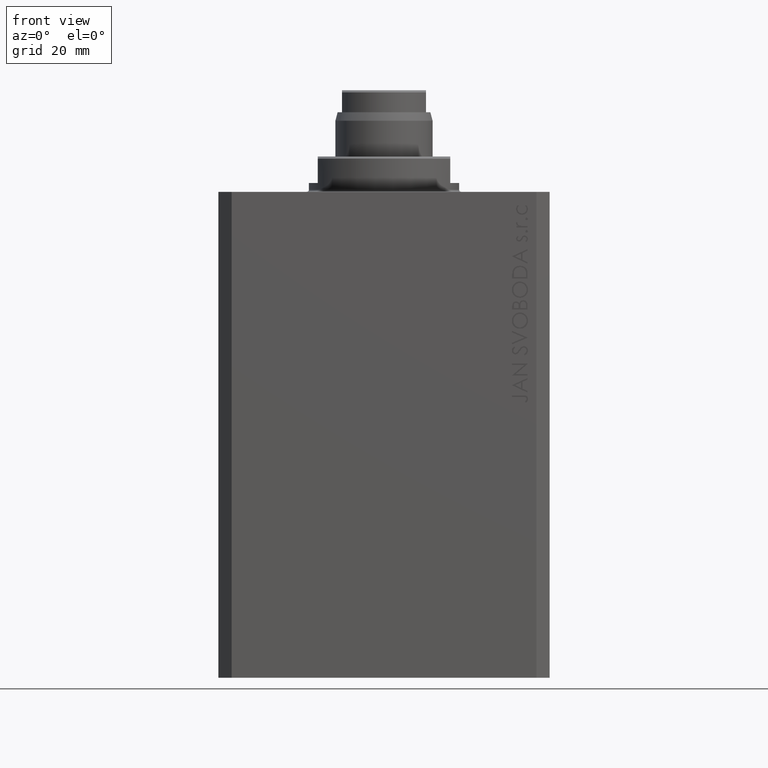
[diagram: clean part render]
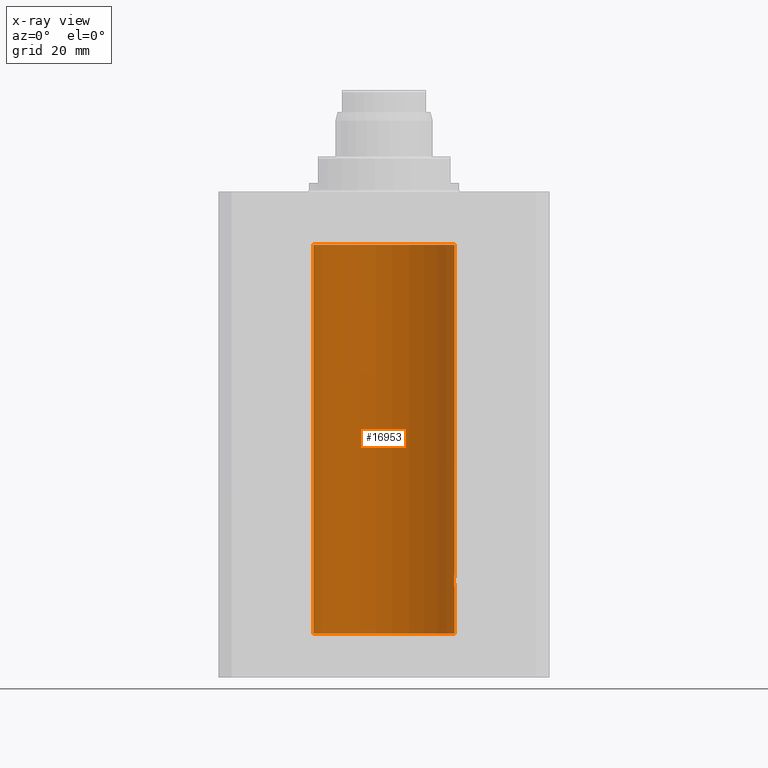
[diagram: x-ray — body ghosted, one internal face saturated and labeled with its STEP entity id]
A machine part, front view, then the same camera in x-ray: the body is ghosted and one INTERNAL B-rep face — a face not visible from any outside direction — is saturated and labeled: STEP entity #16953.
In plain terms, the highlighted cylindrical surface (partial cylindrical patch) has radius 16 mm, axis along (0, 0, 1).
Its self-contained STEP definition (entity closure, byte-faithful):
#438 = EDGE_CURVE ( 'NONE', #31828, #24226, #24915, .T. ) ;
#1488 = VERTEX_POINT ( 'NONE', #41123 ) ;
#1909 = EDGE_LOOP ( 'NONE', ( #39824, #4949, #27418, #4941, #44211, #29793, #14642 ) ) ;
#2014 = AXIS2_PLACEMENT_3D ( 'NONE', #33259, #11481, #19535 ) ;
#2063 = CARTESIAN_POINT ( 'NONE',  ( 15.92095407913750726, 1.590131347295331787, -86.77998469042918828 ) ) ;
#2765 = CARTESIAN_POINT ( 'NONE',  ( 15.97588373855009536, 0.8864683965309506641, -86.20240655627672766 ) ) ;
#2887 = DIRECTION ( 'NONE',  ( 1.000000000000000000, 0.000000000000000000, 0.000000000000000000 ) ) ;
#4464 = VERTEX_POINT ( 'NONE', #22307 ) ;
#4941 = ORIENTED_EDGE ( 'NONE', *, *, #46422, .T. ) ;
#4949 = ORIENTED_EDGE ( 'NONE', *, *, #33729, .F. ) ;
#5236 = CARTESIAN_POINT ( 'NONE',  ( 15.87450786638750699, 2.000000000000297540, -88.00000000000000000 ) ) ;
#6293 = CARTESIAN_POINT ( 'NONE',  ( 15.95379436193629985, 1.219925354616377744, -86.40980009844315646 ) ) ;
#6345 = CARTESIAN_POINT ( 'NONE',  ( 15.95380611548778660, 1.219810915946573315, -89.59032870701324214 ) ) ;
#7146 = VECTOR ( 'NONE', #21364, 1000.000000000000000 ) ;
#7162 = CARTESIAN_POINT ( 'NONE',  ( -16.00000000000000000, 1.959434878635765131E-15, -99.99999999999998579 ) ) ;
#7215 = CARTESIAN_POINT ( 'NONE',  ( 16.00000000000000000, -2.738688404655786685E-23, -86.00000000000000000 ) ) ;
#8797 = CARTESIAN_POINT ( 'NONE',  ( 15.88135773388169092, 1.947448446433282854, -88.52472455433247944 ) ) ;
#8919 = CARTESIAN_POINT ( 'NONE',  ( 15.90582997788426312, 1.734897462761019860, -86.99646332855050446 ) ) ;
#11481 = DIRECTION ( 'NONE',  ( 0.000000000000000000, 0.000000000000000000, 1.000000000000000000 ) ) ;
#12338 = CARTESIAN_POINT ( 'NONE',  ( 15.94550883254178686, 1.322613426523512103, -89.50588495029013814 ) ) ;
#12468 = CARTESIAN_POINT ( 'NONE',  ( 15.88712192135845491, 1.897869642555071179, -87.35557946728211220 ) ) ;
#13164 = CARTESIAN_POINT ( 'NONE',  ( 15.87617168140110380, 1.986916736633999481, -87.73680934434936773 ) ) ;
#13319 = CIRCLE ( 'NONE', #2014, 16.00000000000000000 ) ;
#13750 = CARTESIAN_POINT ( 'NONE',  ( 0.000000000000000000, 0.000000000000000000, -12.00000000000000000 ) ) ;
#14076 = VECTOR ( 'NONE', #15790, 1000.000000000000000 ) ;
#14280 = FACE_OUTER_BOUND ( 'NONE', #1909, .T. ) ;
#14351 = CARTESIAN_POINT ( 'NONE',  ( 15.87450786638750699, 2.000000000000297540, -88.00000000000000000 ) ) ;
#14642 = ORIENTED_EDGE ( 'NONE', *, *, #33457, .T. ) ;
#15341 = VECTOR ( 'NONE', #39454, 1000.000000000000000 ) ;
#15790 = DIRECTION ( 'NONE',  ( -0.000000000000000000, -0.000000000000000000, 1.000000000000000000 ) ) ;
#16953 = ADVANCED_FACE ( 'NONE', ( #14280 ), #29666, .F. ) ;
#16956 = CARTESIAN_POINT ( 'NONE',  ( 15.88249567060696243, 1.935716055827873205, -87.48027816021618719 ) ) ;
#17006 = CARTESIAN_POINT ( 'NONE',  ( 15.99836014839681475, 0.2623923436743449966, -89.98699919334815434 ) ) ;
#17181 = CARTESIAN_POINT ( 'NONE',  ( 15.98747899434752817, 0.6443623600228921555, -86.10211550510818768 ) ) ;
#17241 = CARTESIAN_POINT ( 'NONE',  ( -16.00000000000000000, 1.959434878635765131E-15, -99.99999999999998579 ) ) ;
#17927 = CARTESIAN_POINT ( 'NONE',  ( 16.00000000000000000, 0.000000000000000000, -99.99999999999998579 ) ) ;
#19535 = DIRECTION ( 'NONE',  ( 1.000000000000000000, 0.000000000000000000, 0.000000000000000000 ) ) ;
#20683 = B_SPLINE_CURVE_WITH_KNOTS ( 'NONE', 3,
 ( #35449, #38995, #17006, #30331, #45867, #46313, #42316, #6345, #12338, #26782, #41215, #8797, #37657, #5236 ),
 .UNSPECIFIED., .F., .F.,
 ( 4, 2, 2, 2, 2, 2, 4 ),
 ( 3.425808224979659880E-18, 0.0003912813346923353663, 0.0007825626693846673716, 0.001173844004076999431, 0.001565125338769331274, 0.002347688008154024449, 0.003130250677538717625 ),
 .UNSPECIFIED. ) ;
#21242 = LINE ( 'NONE', #17927, #15341 ) ;
#21364 = DIRECTION ( 'NONE',  ( -0.000000000000000000, -0.000000000000000000, 1.000000000000000000 ) ) ;
#22307 = CARTESIAN_POINT ( 'NONE',  ( 16.00000000000000000, 3.525697934315522014E-15, -90.00000000000000000 ) ) ;
#22423 = DIRECTION ( 'NONE',  ( 0.000000000000000000, 0.000000000000000000, 1.000000000000000000 ) ) ;
#22656 = LINE ( 'NONE', #23137, #14076 ) ;
#23137 = CARTESIAN_POINT ( 'NONE',  ( 16.00000000000000000, 0.000000000000000000, -99.99999999999998579 ) ) ;
#23885 = VERTEX_POINT ( 'NONE', #14351 ) ;
#24226 = VERTEX_POINT ( 'NONE', #25072 ) ;
#24283 = CARTESIAN_POINT ( 'NONE',  ( 15.92911104305801828, 1.507378839264604142, -86.67893664295412748 ) ) ;
#24915 = LINE ( 'NONE', #7162, #7146 ) ;
#25010 = VERTEX_POINT ( 'NONE', #44459 ) ;
#25072 = CARTESIAN_POINT ( 'NONE',  ( -16.00000000000000000, 1.959434878635765131E-15, -12.00000000000000000 ) ) ;
#25226 = EDGE_CURVE ( 'NONE', #25010, #27680, #21242, .T. ) ;
#25374 = EDGE_CURVE ( 'NONE', #23885, #25010, #44469, .T. ) ;
#25617 = CARTESIAN_POINT ( 'NONE',  ( 16.00000000000000000, 0.000000000000000000, -12.00000000000000000 ) ) ;
#25759 = AXIS2_PLACEMENT_3D ( 'NONE', #32739, #29430, #36987 ) ;
#26782 = CARTESIAN_POINT ( 'NONE',  ( 15.92096875784783094, 1.599058044721133109, -89.22922593843968286 ) ) ;
#26911 = CARTESIAN_POINT ( 'NONE',  ( 15.99834953062734222, 0.2631943783489349431, -86.01308452963878892 ) ) ;
#27418 = ORIENTED_EDGE ( 'NONE', *, *, #33578, .T. ) ;
#27680 = VERTEX_POINT ( 'NONE', #25617 ) ;
#27844 = CARTESIAN_POINT ( 'NONE',  ( 15.87450786638751055, 2.000000000000297984, -87.86943869497294202 ) ) ;
#29430 = DIRECTION ( 'NONE',  ( -0.000000000000000000, -0.000000000000000000, 1.000000000000000000 ) ) ;
#29666 = CYLINDRICAL_SURFACE ( 'NONE', #25759, 16.00000000000000000 ) ;
#29793 = ORIENTED_EDGE ( 'NONE', *, *, #25226, .T. ) ;
#30331 = CARTESIAN_POINT ( 'NONE',  ( 15.99211620657850830, 0.5182628822511398115, -89.93608344894173001 ) ) ;
#30721 = CIRCLE ( 'NONE', #40501, 16.00000000000000000 ) ;
#31828 = VERTEX_POINT ( 'NONE', #17241 ) ;
#32739 = CARTESIAN_POINT ( 'NONE',  ( 0.000000000000000000, 0.000000000000000000, -99.99999999999998579 ) ) ;
#33259 = CARTESIAN_POINT ( 'NONE',  ( 0.000000000000000000, 0.000000000000000000, -99.99999999999998579 ) ) ;
#33457 = EDGE_CURVE ( 'NONE', #27680, #24226, #30721, .T. ) ;
#33578 = EDGE_CURVE ( 'NONE', #1488, #4464, #22656, .T. ) ;
#33729 = EDGE_CURVE ( 'NONE', #1488, #31828, #13319, .T. ) ;
#35173 = CARTESIAN_POINT ( 'NONE',  ( 15.96887171920781689, 1.003448269354837441, -86.26505182542071282 ) ) ;
#35399 = CARTESIAN_POINT ( 'NONE',  ( 16.00000000000000000, 0.1305637488590865314, -85.99999999999998579 ) ) ;
#35449 = CARTESIAN_POINT ( 'NONE',  ( 16.00000000000000000, 3.525697934315522014E-15, -90.00000000000000000 ) ) ;
#36987 = DIRECTION ( 'NONE',  ( 1.000000000000000000, 0.000000000000000000, 0.000000000000000000 ) ) ;
#37657 = CARTESIAN_POINT ( 'NONE',  ( 15.87450786638751410, 2.000000000000297984, -88.26124530359815878 ) ) ;
#38708 = CARTESIAN_POINT ( 'NONE',  ( 15.94566414814287469, 1.320819617421907566, -86.49240758272487994 ) ) ;
#38995 = CARTESIAN_POINT ( 'NONE',  ( 15.99999999999999645, 0.1323149458028787251, -89.99999999999998579 ) ) ;
#39454 = DIRECTION ( 'NONE',  ( -0.000000000000000000, -0.000000000000000000, 1.000000000000000000 ) ) ;
#39824 = ORIENTED_EDGE ( 'NONE', *, *, #438, .F. ) ;
#40501 = AXIS2_PLACEMENT_3D ( 'NONE', #13750, #22423, #2887 ) ;
#41123 = CARTESIAN_POINT ( 'NONE',  ( 16.00000000000000000, 0.000000000000000000, -99.99999999999998579 ) ) ;
#41215 = CARTESIAN_POINT ( 'NONE',  ( 15.90454527605181312, 1.748004143318091286, -89.00616739381548825 ) ) ;
#41569 = CARTESIAN_POINT ( 'NONE',  ( 15.87450786638750699, 2.000000000000297540, -88.00000000000000000 ) ) ;
#42262 = CARTESIAN_POINT ( 'NONE',  ( 15.89878974374255449, 1.797508500259969111, -87.11334888788564967 ) ) ;
#42316 = CARTESIAN_POINT ( 'NONE',  ( 15.96893716441425859, 1.002454028984434364, -89.73556042441214231 ) ) ;
#44211 = ORIENTED_EDGE ( 'NONE', *, *, #25374, .T. ) ;
#44459 = CARTESIAN_POINT ( 'NONE',  ( 16.00000000000000000, -2.738688404655786685E-23, -86.00000000000000000 ) ) ;
#44469 = B_SPLINE_CURVE_WITH_KNOTS ( 'NONE', 3,
 ( #41569, #27844, #13164, #16956, #12468, #42262, #8919, #2063, #24283, #38708, #6293, #35173, #2765, #17181, #44875, #26911, #35399, #7215 ),
 .UNSPECIFIED., .F., .F.,
 ( 4, 2, 2, 2, 2, 2, 2, 2, 4 ),
 ( 0.003130250677538717625, 0.003521348247420689938, 0.003912445817302662686, 0.004303543387184635000, 0.004694640957066606446, 0.005085738526948579627, 0.005476836096830551073, 0.005867933666712524254, 0.006259031236594496568 ),
 .UNSPECIFIED. ) ;
#44875 = CARTESIAN_POINT ( 'NONE',  ( 15.99207203775707065, 0.5197027266689084879, -86.06427960618061945 ) ) ;
#45867 = CARTESIAN_POINT ( 'NONE',  ( 15.98743782203464825, 0.6453927552190292793, -89.89754035852681113 ) ) ;
#46313 = CARTESIAN_POINT ( 'NONE',  ( 15.97582125337101999, 0.8876008124445647907, -89.79704090617751433 ) ) ;
#46422 = EDGE_CURVE ( 'NONE', #4464, #23885, #20683, .T. ) ;